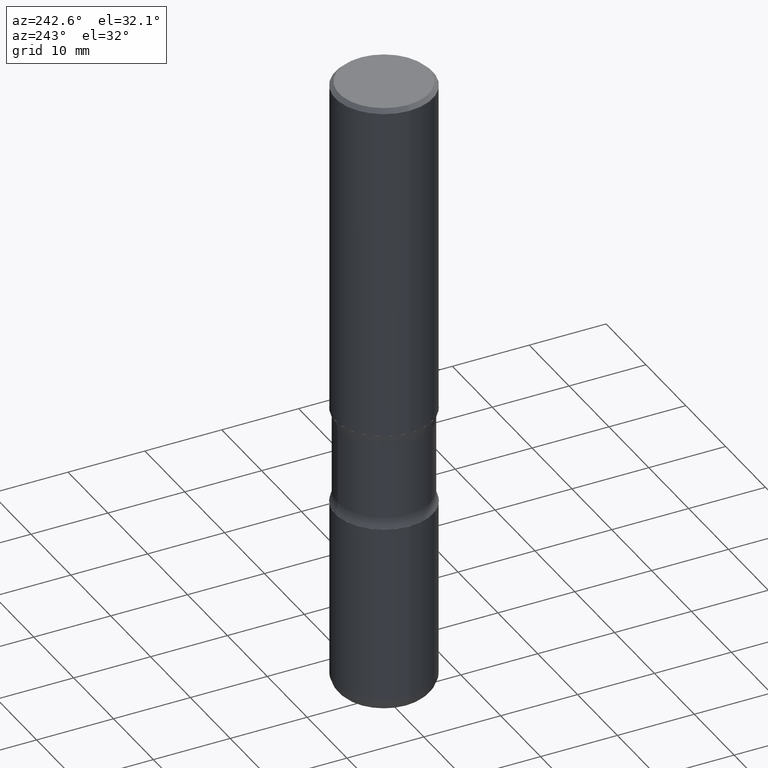
[diagram: clean part render]
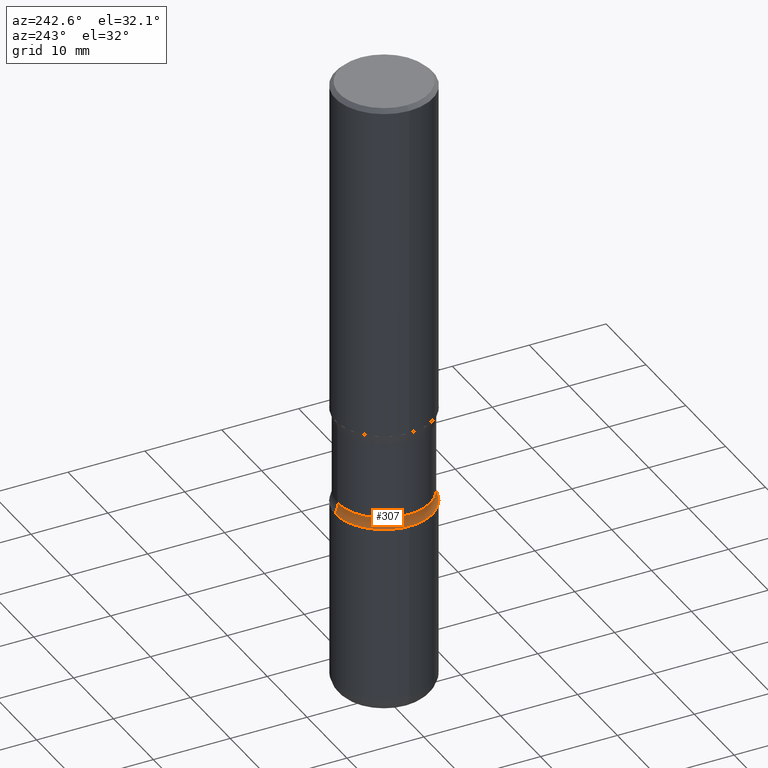
[diagram: same view with one face highlighted and labeled with its STEP entity id]
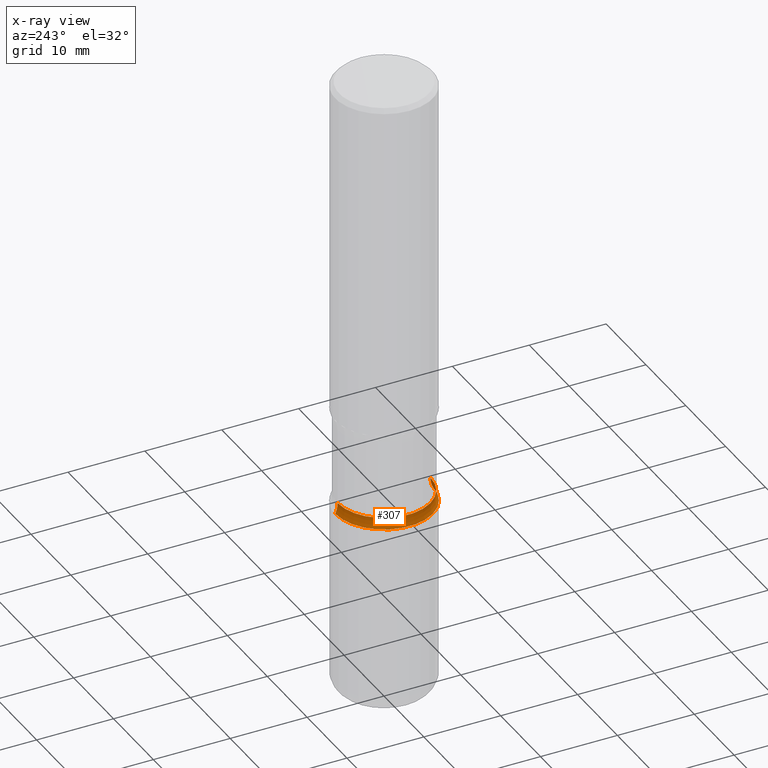
[diagram: x-ray of the same camera — body ghosted, the highlighted face saturated]
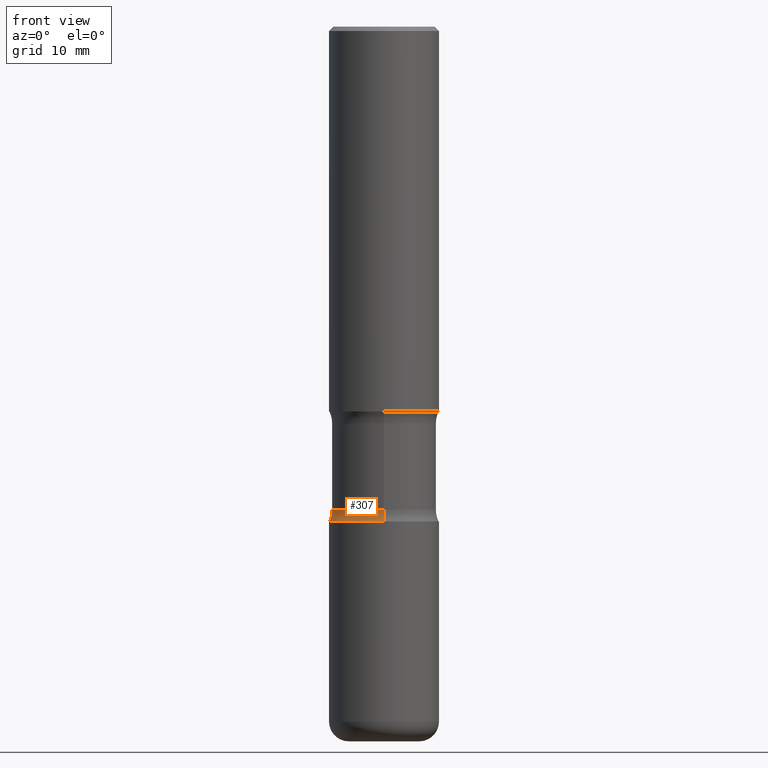
[diagram: same view with one face highlighted and labeled with its STEP entity id]
A machine part, auxiliary view. The second image highlights one B-rep face of the part: STEP entity #307.
The next image is the same camera in x-ray: the body ghosted, the highlighted face saturated — about 0% of this face is hidden behind the body in this view.
A second angle (front view) of the same face is appended — the face is thin or edge-on in the first view.
In plain terms, the highlighted toroidal blend (fillet) surface has major radius 9.2075 mm and minor (blend) radius 3.175 mm.
Its self-contained STEP definition (entity closure, byte-faithful):
#4 = CARTESIAN_POINT ( 'NONE',  ( 5.369060421469781115E-29, -7.665595333406135543E-15, -2.195513763205741320 ) ) ;
#20 = CARTESIAN_POINT ( 'NONE',  ( -1.715124499442830037E-15, -0.2500000000000082712, -2.250000000000000444 ) ) ;
#22 = DIRECTION ( 'NONE',  ( 2.269921404058617848E-29, -3.742875210225950140E-15, -1.000000000000000000 ) ) ;
#49 = EDGE_CURVE ( 'NONE', #364, #140, #335, .T. ) ;
#59 = VERTEX_POINT ( 'NONE', #558 ) ;
#65 = EDGE_CURVE ( 'NONE', #364, #59, #441, .T. ) ;
#76 = CARTESIAN_POINT ( 'NONE',  ( 5.502304813916559585E-29, -7.855833012397081604E-15, -2.250000000000001332 ) ) ;
#84 = AXIS2_PLACEMENT_3D ( 'NONE', #4, #348, #178 ) ;
#89 = DIRECTION ( 'NONE',  ( 6.982962677686265133E-15, 1.000000000000000000, -3.278217592397110735E-15 ) ) ;
#120 = VERTEX_POINT ( 'NONE', #200 ) ;
#127 = CARTESIAN_POINT ( 'NONE',  ( 5.378625338790664161E-29, -7.651897827401345401E-15, -2.195513763205741320 ) ) ;
#140 = VERTEX_POINT ( 'NONE', #556 ) ;
#151 = ORIENTED_EDGE ( 'NONE', *, *, #49, .T. ) ;
#161 = ORIENTED_EDGE ( 'NONE', *, *, #65, .F. ) ;
#178 = DIRECTION ( 'NONE',  ( 6.982962677686265922E-15, 1.000000000000000000, -3.742875210225950140E-15 ) ) ;
#196 = CIRCLE ( 'NONE', #489, 0.2374999999999998224 ) ;
#200 = CARTESIAN_POINT ( 'NONE',  ( 1.658453635950540606E-15, 0.2374999999999921618, -2.195513763205742208 ) ) ;
#251 = CARTESIAN_POINT ( 'NONE',  ( -2.486930524192125050E-15, -0.3625000000000075384, -2.195513763205739988 ) ) ;
#256 = AXIS2_PLACEMENT_3D ( 'NONE', #76, #22, #89 ) ;
#279 = DIRECTION ( 'NONE',  ( 6.860497997771530774E-15, 1.000000000000000000, 0.000000000000000000 ) ) ;
#294 = DIRECTION ( 'NONE',  ( -1.000000000000000000, 6.982962677686265922E-15, -4.883557194083112340E-29 ) ) ;
#301 = DIRECTION ( 'NONE',  ( 6.982962677686265133E-15, 1.000000000000000000, -3.450755360418019105E-15 ) ) ;
#307 = ADVANCED_FACE ( 'NONE', ( #393 ), #313, .F. ) ;
#313 = TOROIDAL_SURFACE ( 'NONE', #84, 0.3624999999999998779, 0.1250000000000000555 ) ;
#316 = EDGE_CURVE ( 'NONE', #140, #120, #196, .T. ) ;
#328 = EDGE_CURVE ( 'NONE', #59, #120, #388, .T. ) ;
#335 = CIRCLE ( 'NONE', #546, 0.1250000000000000555 ) ;
#348 = DIRECTION ( 'NONE',  ( 2.269921404058617848E-29, -3.742875210225950140E-15, -1.000000000000000000 ) ) ;
#364 = VERTEX_POINT ( 'NONE', #20 ) ;
#370 = ORIENTED_EDGE ( 'NONE', *, *, #328, .F. ) ;
#382 = EDGE_LOOP ( 'NONE', ( #161, #151, #545, #370 ) ) ;
#387 = DIRECTION ( 'NONE',  ( 2.269921404058617848E-29, -3.742875210225950140E-15, -1.000000000000000000 ) ) ;
#388 = CIRCLE ( 'NONE', #462, 0.1250000000000000555 ) ;
#393 = FACE_OUTER_BOUND ( 'NONE', #382, .T. ) ;
#441 = CIRCLE ( 'NONE', #256, 0.2500000000000003886 ) ;
#462 = AXIS2_PLACEMENT_3D ( 'NONE', #479, #294, #475 ) ;
#475 = DIRECTION ( 'NONE',  ( -6.982962677686267499E-15, -1.000000000000000000, 0.000000000000000000 ) ) ;
#479 = CARTESIAN_POINT ( 'NONE',  ( 2.531323970661324142E-15, 0.3624999999999922173, -2.195513763205742652 ) ) ;
#489 = AXIS2_PLACEMENT_3D ( 'NONE', #127, #387, #301 ) ;
#545 = ORIENTED_EDGE ( 'NONE', *, *, #316, .T. ) ;
#546 = AXIS2_PLACEMENT_3D ( 'NONE', #251, #560, #279 ) ;
#556 = CARTESIAN_POINT ( 'NONE',  ( -1.672246386956757412E-15, -0.2375000000000074829, -2.195513763205740432 ) ) ;
#558 = CARTESIAN_POINT ( 'NONE',  ( 1.745740669421624462E-15, 0.2499999999999925615, -2.250000000000001776 ) ) ;
#560 = DIRECTION ( 'NONE',  ( 1.000000000000000000, -6.860497997771530774E-15, 4.837720192625000670E-29 ) ) ;